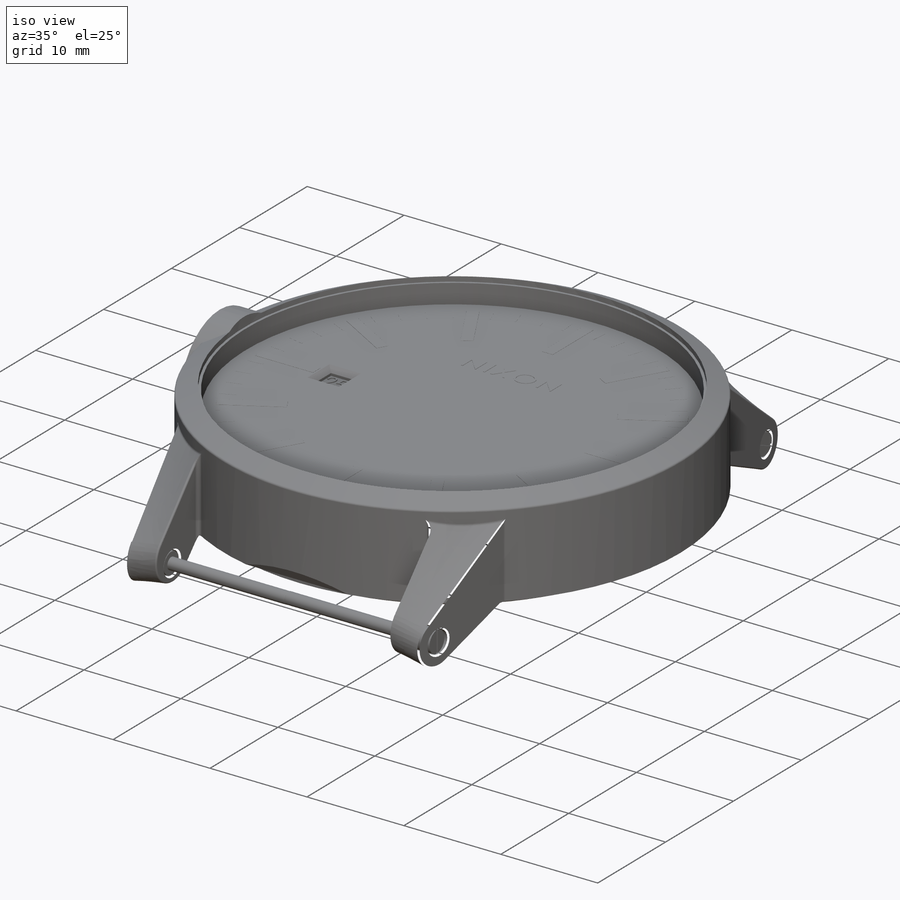
[diagram: iso view]
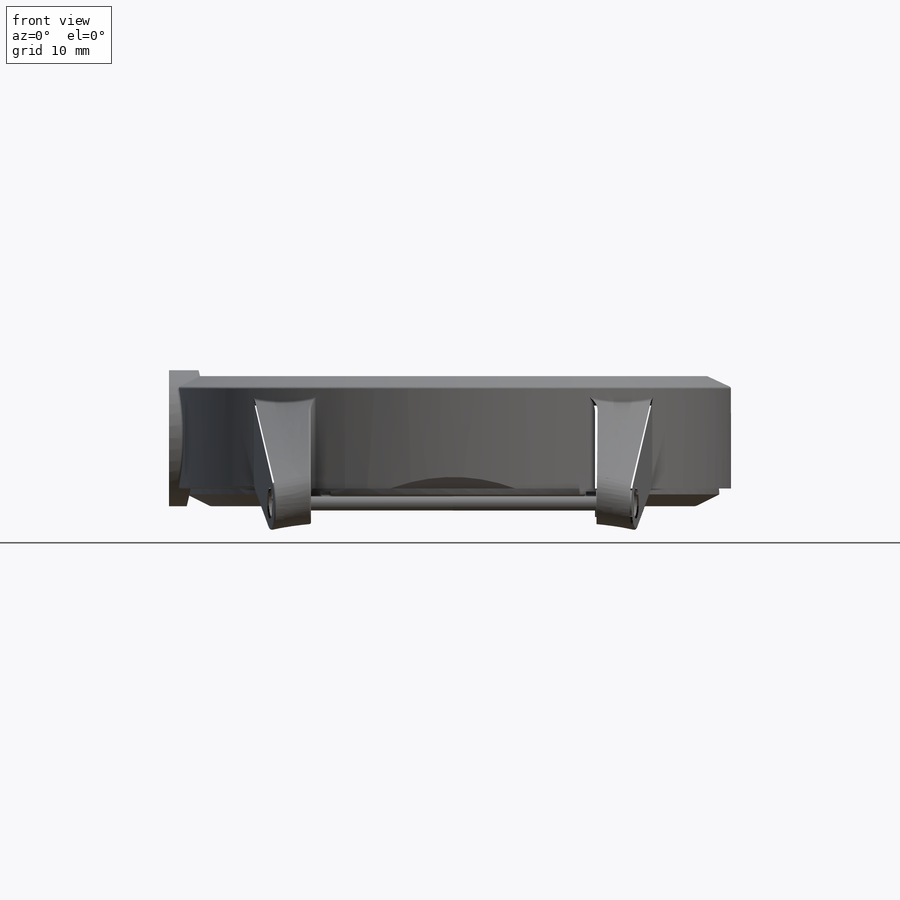
[diagram: front view]
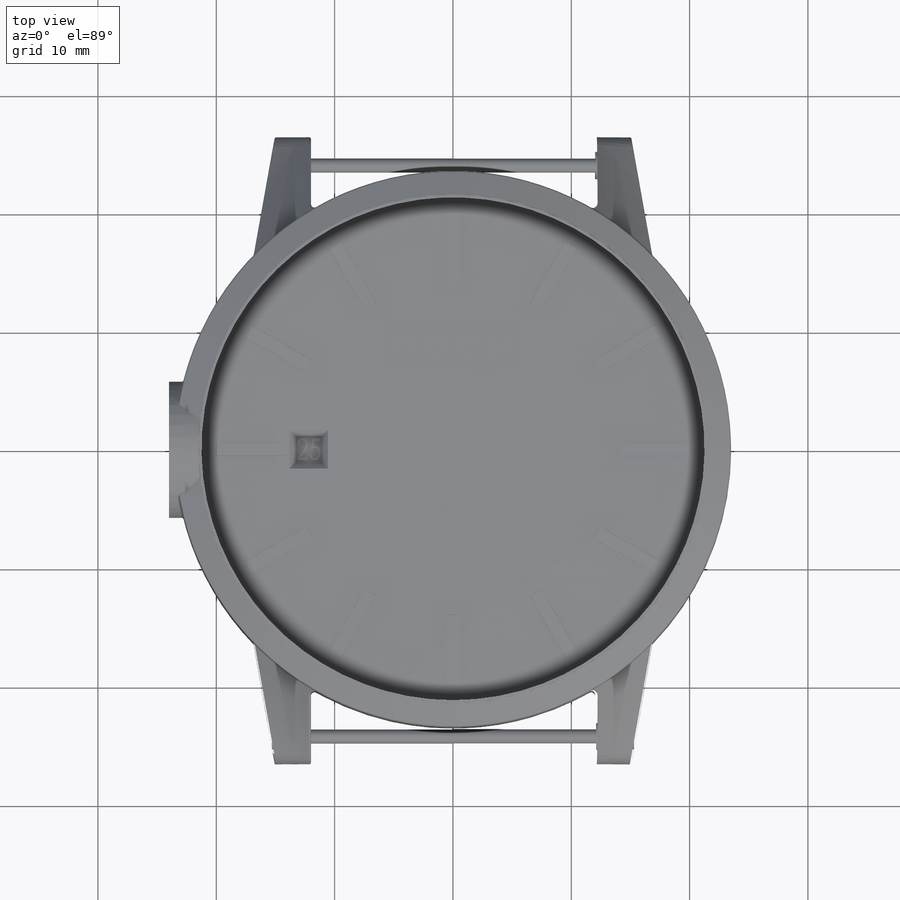
[diagram: top view]
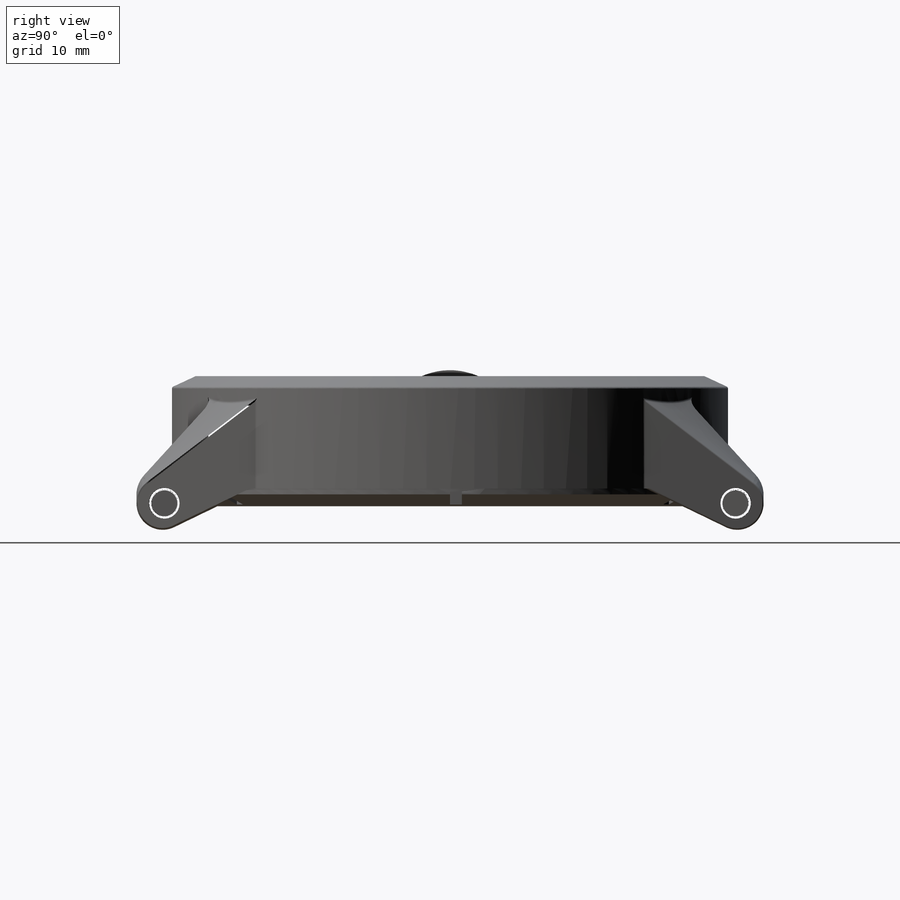
[diagram: right view]
SOLIDWORKS PART (.sldprt)
format: sldprt  version: not decoded by parser v0  size: 7,988,736 bytes
history: native  units: mm
features: sketch x43, extrude x22, fillet x10, cut_extrude x8, mirror x6, pattern_circular x5, plane x4, move_body x3, chamfer x2, material x1, revolve x1, cut_revolve x1, pattern_linear x1 + 4 further entries (+11 scaffold rows collapsed)
feature tree (122):
  scaffold x11  (default folders/planes/origin — collapsed)
  material  "Material <not specified>"
  "Minute Markers"
  "NIXON FACE TEXT"
  sketch  "Sketch1"  dims[c1.D1=47.0mm c1.D2=11.0mm c1.D3=3.0mm c1.D4=2.0mm c2.D2=11.0mm c2.D5=1.0mm c2.D6=1.5mm c2.D7=41.0mm c2.D8=0.5mm c2.D9=~2.164397mm c3.D9=25.0deg c3.D2=2.0mm c3.D4=11.0mm c4.D9=~2.206756mm c5.D9=25.0deg c5.D10=45.0mm c5.D3=0.5mm c6.D10=0.25mm c6.D11=2.5mm]
  revolve  "Revolve1"  Angle=360deg
  sketch  "Sketch2"  dims[D1=11.5mm]
  extrude  "Boss-Extrude1"  Depth=24mm
  sketch  "Sketch5"  dims[D1=0.0mm]
  cut_revolve  "Dial Relief Cut"  Angle=360deg
  sketch  "Sketch6"  dims[D2=2.0mm D1=0.0mm D3=0.1mm]
  cut_extrude  "Underside Cut"  Depth=0.25mm
  sketch  "Sketch3"  dims[D1=0.0mm D2=0.25mm]
  extrude  "Black Dial Knob"  Depth=4mm
  pattern_circular  "Underside Tab Cut"  Count=6 Angle=60deg
  sketch  "Sketch8"  dims[D1=6.0mm D2=1.1mm D3=14.0mm]
  extrude  "Hour Marker"  Depth=0.03mm
  fillet  "Hour Fillet"  Radius=0.02mm
  pattern_circular  "Hour Marker Pattern"  Count=12 Angle=30deg
  sketch  "Sketch9"  dims[c1.D1=~1.67854mm c1.D2=~1.44703mm c1.D3=~2.32671mm c2.D1=~1.714446mm c2.D2=~1.238724mm c2.D3=~2.350838mm c2.D4=~2.023493mm c2.D5=~9.290243mm c3.D5=~9.290243mm c3.D2=~2.65335mm c3.D6=1.5mm c3.D7=0.12mm c3.D1=~1.960697mm c4.D2=~1.960697mm c4.D3=~1.960697mm c5.D2=~1.960697mm c5.D3=~1.678671mm c6.D2=~1.960697mm c6.D3=~2.328023mm c6.D1=~1.171974mm c7.D2=~1.176096mm c7.D3=~2.343949mm c7.D4=~2.343949mm c7.D5=~9.375796mm c8.D2=~2.343949mm]
  extrude  "Boss-Extrude4"  Depth=0.01mm
  pattern_circular  "5 MINUTE PATTERN"  Count=4 Angle=6.75deg
  pattern_circular  "MINUTES PATTERN"  Count=12 Angle=30deg
  sketch  "Sketch7"  dims[D1=0.0mm D2=0.01mm]
  extrude  "Main Glass Piece"  [1 undecoded]
  chamfer  "Chamfer2"  Distance=0.75mm Angle=45deg
  sketch  "Sketch10"
  extrude  "Grip Profile"  Depth=0.056mm
  pattern_circular  "Grip Pattern 1"  Count=74 Angle=4.864865deg
  sketch  "Sketch11"
  pattern_linear  "DIAL"  Count1=3 Count2=1 Spacing1=1mm Spacing2=50mm
  plane  "Hinge Plane"  Offset=12mm
  sketch  "Sketch13"  dims[c1.D3=5.0mm c1.D1=5.5mm c1.D2=0.5mm c1.D4=3.0mm c2.D1=3.0mm]
  sketch  "3DSketch1"  dims[D1=3.5mm]
  plane  "Plane2"
  plane  "Plane3"
  sketch  "Sketch14"  dims[D1=~4.904137mm]
  sketch  "Sketch15"
  cut_extrude  "Cut-Extrude1"  [1 undecoded]
  sketch  "Sketch20"
  extrude  "Boss-Extrude7"  Depth=15.3mm
  sketch  "Sketch21"  dims[D1=0.0mm]
  cut_extrude  "Cut-Extrude3"  Depth=0.1mm
  mirror  "Mirror1"
  sketch  "Sketch23"
  cut_extrude  "Cut-Extrude4"  Depth=12.1mm
  mirror  "Mirror3"
  mirror  "Mirror2"
  mirror  "Mirror4"
  move_body  "Body-Move/Copy1"
  move_body  "Body-Move/Copy2"
  move_body  "Body-Move/Copy3"
  sketch  "Sketch16"
  cut_extrude  "Cut-Extrude2"  Depth=0.75mm
  chamfer  "Chamfer3"  Distance=0.5mm Angle=45deg
  sketch  "Sketch17"
  extrude  "Boss-Extrude5"  [1 undecoded]
  sketch  "Sketch19"
  extrude  "Boss-Extrude6"  Depth=0.1mm
  sketch  "Sketch24"
  cut_extrude  "Body Cut"  Depth=12.1mm
  sketch  "Sketch26"  dims[c1.D1=1.0mm c1.D2=101.6mm c2.D1=2.0mm]
  extrude  "Long Strap"  Depth=22mm
  sketch  "Sketch30"  dims[D1=2.0mm]
  extrude  "Boss-Extrude9"  Depth=20mm
  fillet  "Strap End Fillet"  Radius=2mm
  fillet  "Strap Surface Fillet"  Radius=0.25mm
  fillet  "Fillet3"  Radius=0.25mm
  sketch  "Sketch27"  dims[c1.D1=0.5mm c1.D2=1.5mm c2.D2=~1.096507deg c3.D2=5.0mm c3.D3=5.0mm]
  cut_extrude  "Latch Hole"  Depth=3mm
  "Sketch-Pattern2"
  sketch  "Sketch31"  dims[D1=1.0mm D2=13.0mm D3=2.0mm D4=20.0mm]
  extrude  "Boss-Extrude10"  Depth=0.397215mm
  mirror  "Mirror5"
  sketch  "Sketch32"  dims[D1=0.0mm]
  extrude  "Boss-Extrude11"  Depth=0.5mm
  mirror  "Mirror7"
  sketch  "Sketch29"  dims[D1=0.4mm]
  sketch  "Sketch33"  dims[D1=0.75mm]
  sketch  "Sketch34"
  cut_extrude  "Cut-Extrude7"  Depth=0.05mm
  sketch  "Sketch35"
  sketch  "3DSketch2"
  plane  "Plane4"
  sketch  "Sketch36"  dims[D1=0.75mm D2=0.75mm]
  extrude  "Boss-Extrude12"  Depth=6mm
  fillet  "Fillet5"  Radius=0.2mm
  sketch  "Sketch37"  dims[c1.D2=~6.599507mm c2.D2=~179.982369deg c3.D2=~0.302282mm c3.D1=0.3mm]
  extrude  "Boss-Extrude13"  Depth=0.2mm
  sketch  "Sketch38"  dims[c1.D2=~1.352303mm c1.D1=~0.302282mm c1.D3=~2.430977mm c2.D3=~214.982125deg c2.D4=2.5mm c2.D5=~15.042567mm c2.D1=0.3mm]
  extrude  "Boss-Extrude14"  Depth=0.2mm
  sketch  "Sketch40"  dims[D5=~0.825133mm D3=0.4mm D4=0.2mm D1=0.2mm D2=0.2mm]
  extrude  "Boss-Extrude15"  Depth=0.05mm
  sketch  "Sketch41"
  extrude  "Boss-Extrude16"  Depth=0.005mm
  sketch  "Sketch42"  dims[D1=0.2mm]
  extrude  "Boss-Extrude17"  Depth=2.005mm
  fillet  "Fillet6"  Radius=0.067mm
  fillet  "Main Bottom Fillet"  Radius=0.5mm
  fillet  "Overall Smoothing"  Radius=0.2mm
  fillet  "Fillet7"  Radius=0.3mm
  fillet  "Fillet8"  Radius=0.15mm
  sketch  "Sketch43"  dims[D1=1.0mm D2=0.6mm]
  extrude  "Boss-Extrude18"  Depth=0.1mm
  sketch  "Sketch44"  dims[D1=0.0508mm]
  extrude  "Boss-Extrude19"  Depth=12mm
  sketch  "Sketch46"  dims[D1=3.9878mm]
  extrude  "Boss-Extrude21"  [1 undecoded]
  sketch  "Sketch49"
  sketch  "Sketch48"
  "Point2"
  sketch  "Sketch50"
decode coverage: 73 of 102 modeling features carry decoded parameters; 4 rows unclassified (native names shown)
note: ~ marks probable driven/reference dimensions
note: 4 parameter values undecoded
summary: no parameter record found for 4 features
note: suppression state not decoded; provenance and decode notes live in map.json
